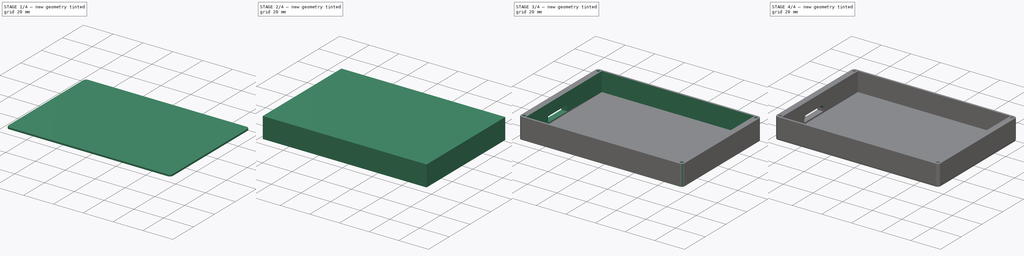
[diagram: build sequence overview — one tinted view per stage of 4, left to right]
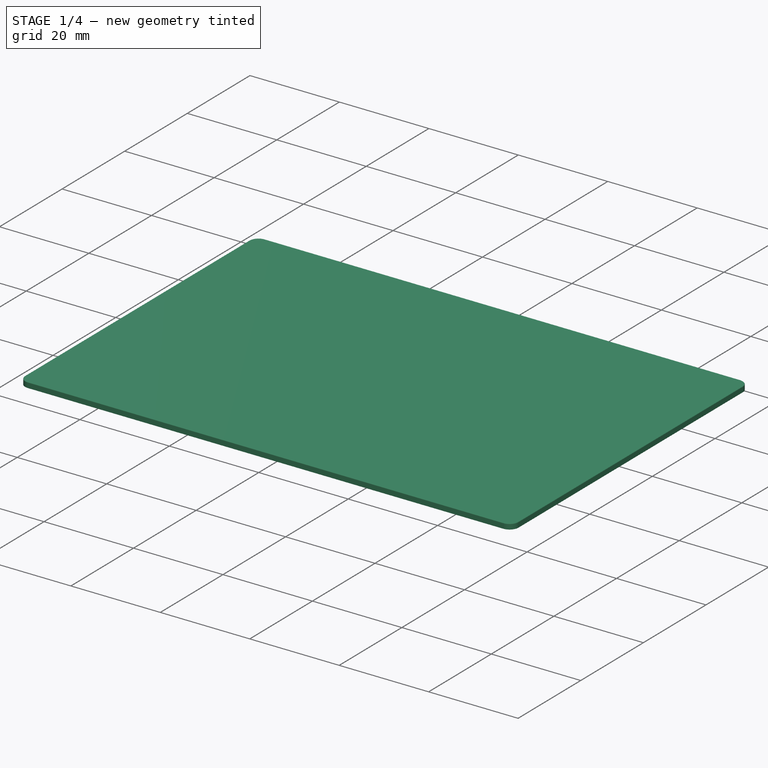
[diagram: stage 1 of 4 — iso view after this stage's code; geometry added in this stage tinted green]
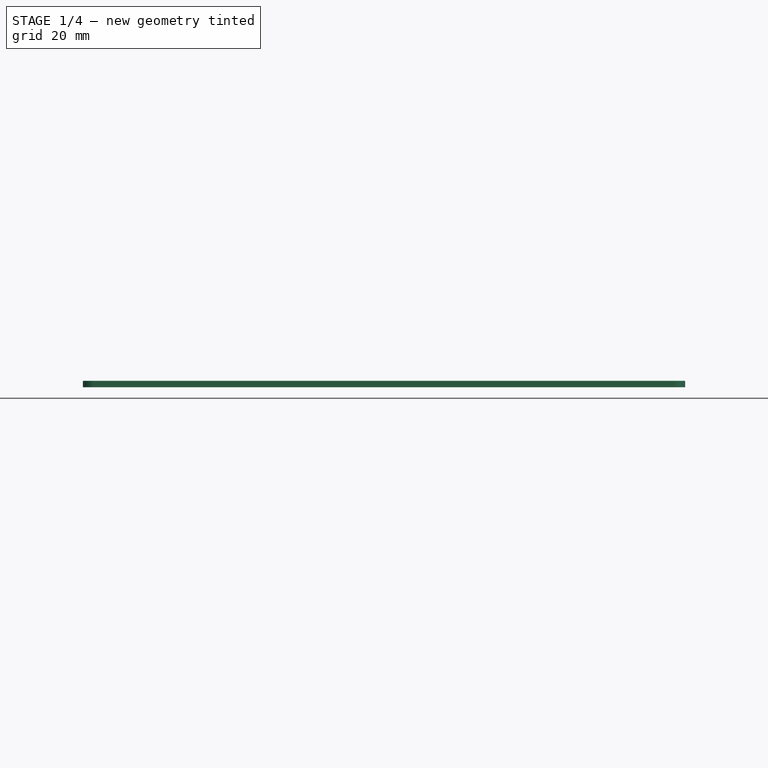
[diagram: stage 1 of 4 — front view after this stage's code; geometry added in this stage tinted green]
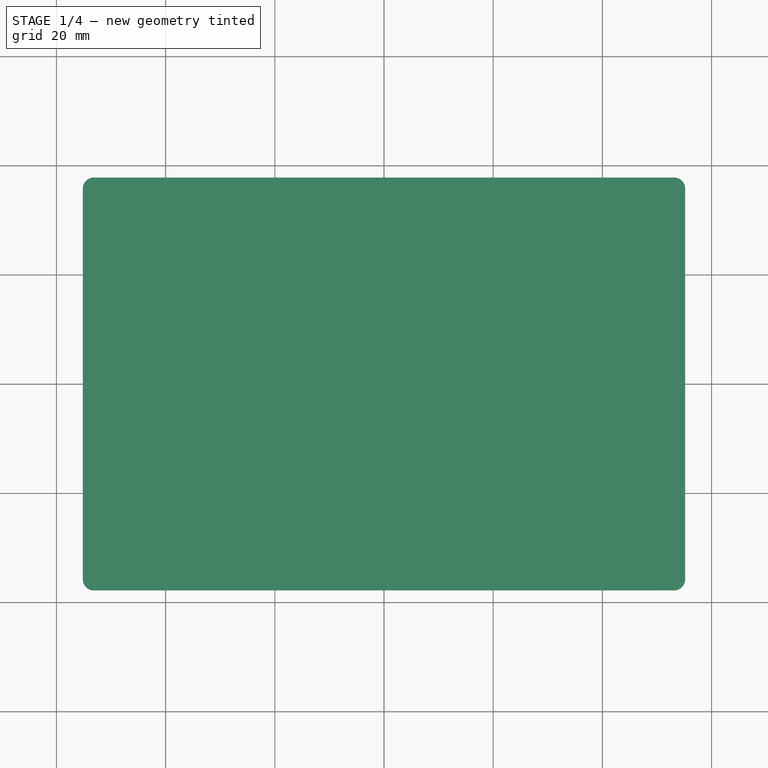
[diagram: stage 1 of 4 — top view after this stage's code; geometry added in this stage tinted green]
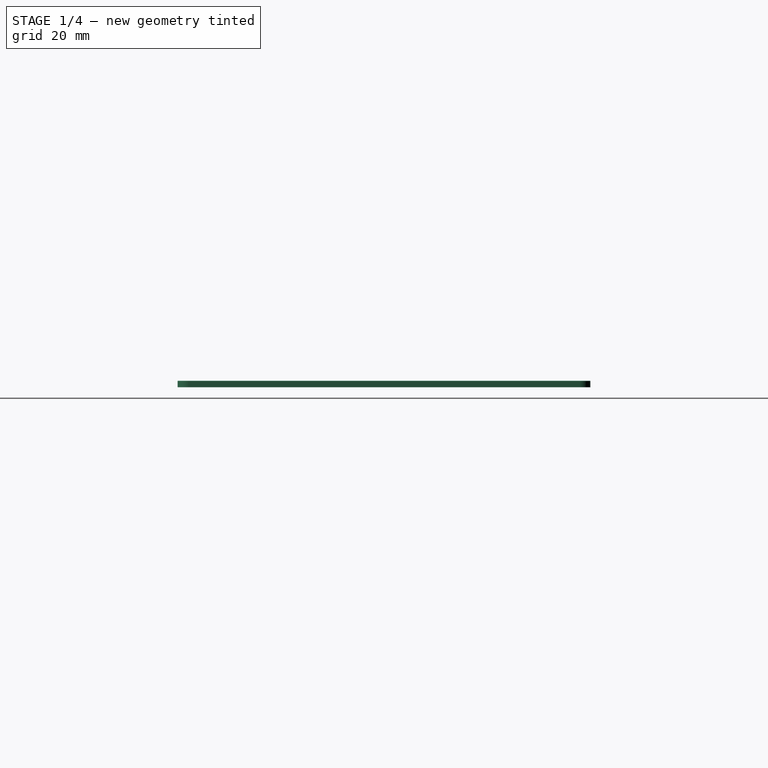
[diagram: stage 1 of 4 — right view after this stage's code; geometry added in this stage tinted green]
FCSTD DOCUMENT  (FreeCAD 0.21R33771 (Git))
Label: 三星移动硬盘盒
License: All rights reserved
LicenseURL: http://en.wikipedia.org/wiki/All_rights_reserved
objects: Sketcher::SketchObject×7, PartDesign::Fillet×5, PartDesign::Pocket×4, PartDesign::Pad×3, PartDesign::Body×2, App::Part×2, PartDesign::Chamfer×1
note: 35 computed .brp shape members not serialized (recipe doc carries the construction recipe); baked Part::Feature solids carry a one-line shape summary decoded from their .brp

FEATURE [PartDesign::Body] Body  label="实体"
  Group = -> [Sketch,Pad,Sketch002,Pocket,Sketch003,Pocket001,Sketch004,Pocket002,Fillet,Fillet001,Fillet003,Sketch005,Pad001]
  Origin = -> Origin
  Tip = -> Pad001
FEATURE [App::Part] Part  label="底部"
  Group = -> [Body]
  Origin = -> Origin001
FEATURE [Sketcher::SketchObject] Sketch006
  FullyConstrained = true
  MapMode = 5
  Support = -> [XY_Plane004]
  sketch-geometry (8):
    g0: LineSegment StartX=-51.25 StartY=36.5 StartZ=0 EndX=51.25 EndY=36.5 EndZ=0
    g1: LineSegment StartX=51.25 StartY=36.5 StartZ=0 EndX=51.25 EndY=-36.5 EndZ=0
    g2: LineSegment StartX=51.25 StartY=-36.5 StartZ=0 EndX=-51.25 EndY=-36.5 EndZ=0
    g3: LineSegment StartX=-51.25 StartY=-36.5 StartZ=0 EndX=-51.25 EndY=36.5 EndZ=0
    g4: LineSegment StartX=-55.15 StartY=37.8 StartZ=0 EndX=55.15 EndY=37.8 EndZ=0
    g5: LineSegment StartX=55.15 StartY=37.8 StartZ=0 EndX=55.15 EndY=-37.8 EndZ=0
    g6: LineSegment StartX=55.15 StartY=-37.8 StartZ=0 EndX=-55.15 EndY=-37.8 EndZ=0
    g7: LineSegment StartX=-55.15 StartY=-37.8 StartZ=0 EndX=-55.15 EndY=37.8 EndZ=0
  constraints (23):
    c: Coincident(g0,g1)
    c: Coincident(g1,g2)
    c: Coincident(g2,g3)
    c: Coincident(g3,g0)
    c: Horizontal(g0)
    c: Horizontal(g2)
    c: Vertical(g1)
    c: Vertical(g3)
    c: DistanceX(g2,g2) = 102.5
    c: DistanceY(g1,g1) = 73
    c: Symmetric(g2,g0,g-1)
    c: Coincident(g4,g5)
    c: Coincident(g5,g6)
    c: Coincident(g6,g7)
    c: Coincident(g7,g4)
    c: Horizontal(g4)
    c: Horizontal(g6)
    c: Vertical(g5)
    c: Vertical(g7)
    c: Distance(g1,g5) = 3.9
    c: Distance(g2,g7) = 3.9
    c: Distance(g0,g4) = 1.3
    c: Distance(g2,g6) = 1.3
FEATURE [PartDesign::Pad] Pad002
  Direction = (0,0,1)
  Length = 1.2
  Length2 = 10
  Profile = -> Sketch006
  ReferenceAxis = -> Sketch006 [N_Axis]
  Type = 0
FEATURE [PartDesign::Fillet] Fillet004
  Base = -> Pad002 [Edge8,Edge1,Edge2,Edge5]
  BaseFeature = -> Pad002
  Radius = 2
  SupportTransform = false
  UseAllEdges = false
FEATURE [PartDesign::Fillet] Fillet005
  Base = -> Fillet004 [Edge20]
  BaseFeature = -> Fillet004
  Radius = 0.1
  SupportTransform = false
  UseAllEdges = false
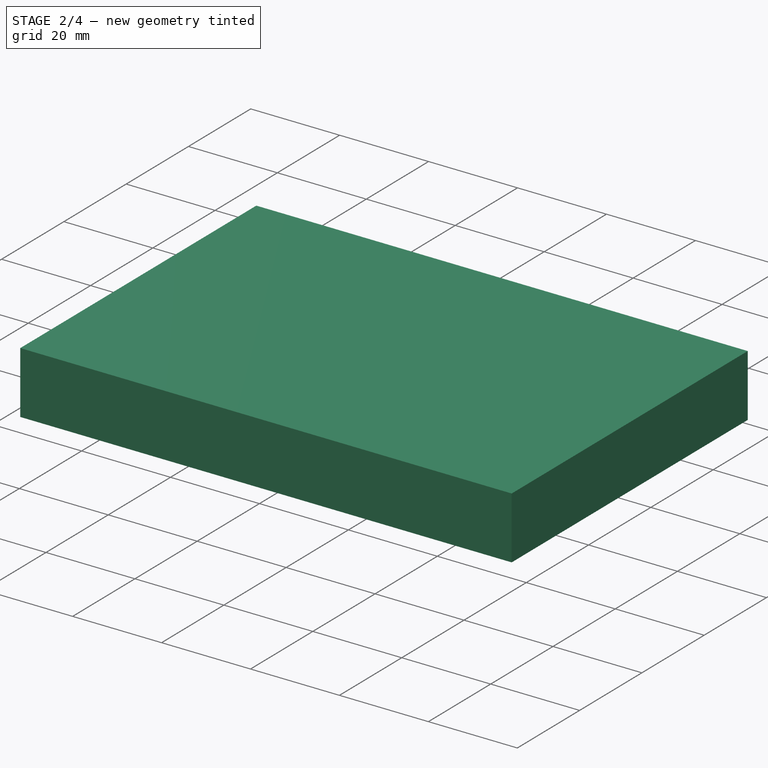
[diagram: stage 2 of 4 — iso view after this stage's code; geometry added in this stage tinted green]
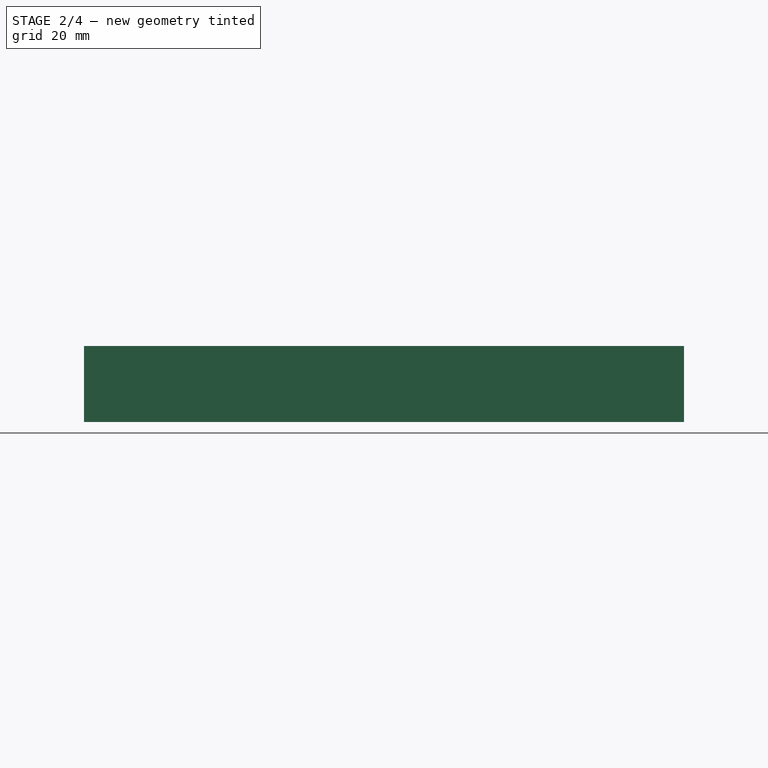
[diagram: stage 2 of 4 — front view after this stage's code; geometry added in this stage tinted green]
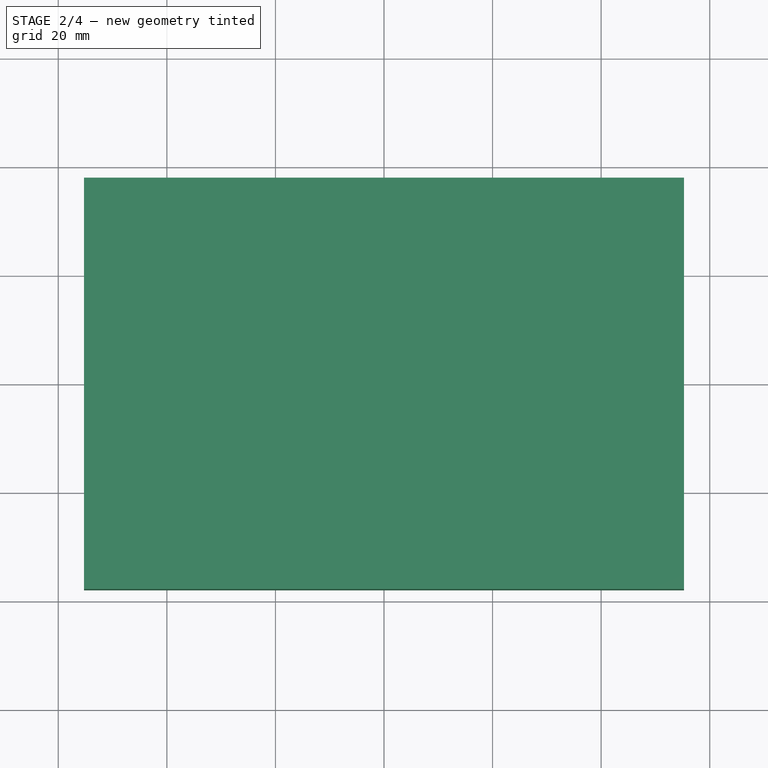
[diagram: stage 2 of 4 — top view after this stage's code; geometry added in this stage tinted green]
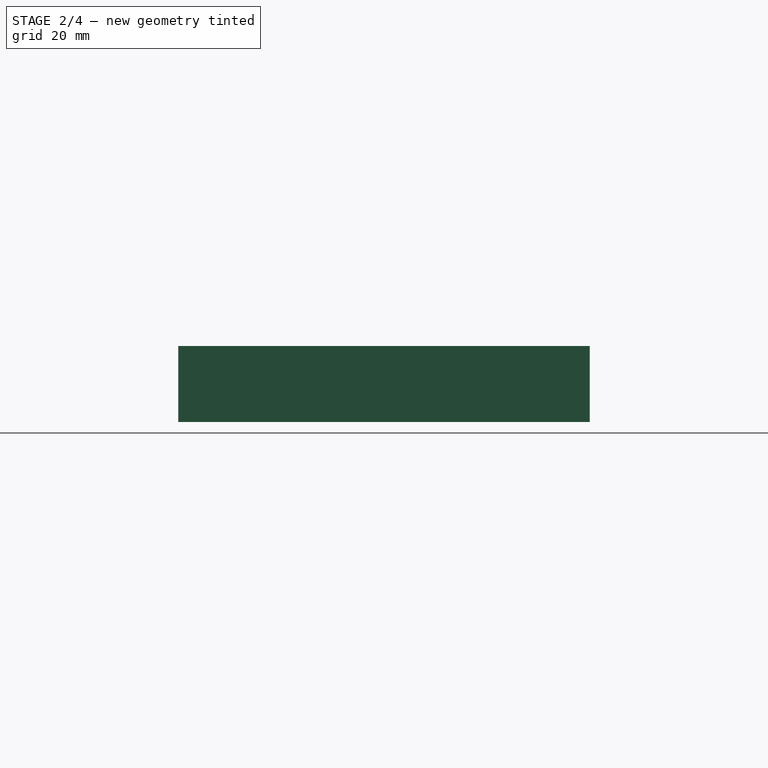
[diagram: stage 2 of 4 — right view after this stage's code; geometry added in this stage tinted green]
FEATURE [Sketcher::SketchObject] Sketch
  FullyConstrained = true
  MapMode = 5
  Support = -> [XY_Plane]
  sketch-geometry (8):
    g0: LineSegment StartX=-51.25 StartY=36.5 StartZ=0 EndX=51.25 EndY=36.5 EndZ=0
    g1: LineSegment StartX=51.25 StartY=36.5 StartZ=0 EndX=51.25 EndY=-36.5 EndZ=0
    g2: LineSegment StartX=51.25 StartY=-36.5 StartZ=0 EndX=-51.25 EndY=-36.5 EndZ=0
    g3: LineSegment StartX=-51.25 StartY=-36.5 StartZ=0 EndX=-51.25 EndY=36.5 EndZ=0
    g4: LineSegment StartX=-55.25 StartY=37.9 StartZ=0 EndX=55.25 EndY=37.9 EndZ=0
    g5: LineSegment StartX=55.25 StartY=37.9 StartZ=0 EndX=55.25 EndY=-37.9 EndZ=0
    g6: LineSegment StartX=55.25 StartY=-37.9 StartZ=0 EndX=-55.25 EndY=-37.9 EndZ=0
    g7: LineSegment StartX=-55.25 StartY=-37.9 StartZ=0 EndX=-55.25 EndY=37.9 EndZ=0
  constraints (23):
    c: Coincident(g0,g1)
    c: Coincident(g1,g2)
    c: Coincident(g2,g3)
    c: Coincident(g3,g0)
    c: Horizontal(g0)
    c: Horizontal(g2)
    c: Vertical(g1)
    c: Vertical(g3)
    c: DistanceX(g2,g2) = 102.5
    c: DistanceY(g1,g1) = 73
    c: Symmetric(g2,g0,g-1)
    c: Coincident(g4,g5)
    c: Coincident(g5,g6)
    c: Coincident(g6,g7)
    c: Coincident(g7,g4)
    c: Horizontal(g4)
    c: Horizontal(g6)
    c: Vertical(g5)
    c: Vertical(g7)
    c: Distance(g1,g5) = 4
    c: Distance(g2,g7) = 4
    c: Distance(g0,g4) = 1.4
    c: Distance(g2,g6) = 1.4
FEATURE [PartDesign::Pad] Pad
  Direction = (0,0,1)
  Length = 14
  Length2 = 10
  Profile = -> Sketch
  ReferenceAxis = -> Sketch [N_Axis]
  Type = 0
FEATURE [Sketcher::SketchObject] Sketch007
  ExternalGeometry = -> [Fillet005]
  FullyConstrained = true
  MapMode = 5
  Placement = pos=(0,0,1.2) rot=(0,0,1;0rad)
  Support = -> [Fillet005]
  sketch-geometry (4):
    g0: Circle CenterX=-53.15 CenterY=-35.6 CenterZ=0 NormalX=0 NormalY=0 NormalZ=1 AngleXU=0 Radius=1
    g1: Circle CenterX=53.15 CenterY=35.6 CenterZ=0 NormalX=0 NormalY=0 NormalZ=1 AngleXU=0 Radius=1
    g2: Circle CenterX=53.15 CenterY=-35.6 CenterZ=0 NormalX=0 NormalY=0 NormalZ=1 AngleXU=0 Radius=1
    g3: Circle CenterX=-53.15 CenterY=35.6 CenterZ=0 NormalX=0 NormalY=0 NormalZ=1 AngleXU=0 Radius=1
  constraints (12):
    c: Diameter(g0) = 2
    c: Diameter(g1) = 2
    c: Equal(g1,g2)
    c: Diameter(g3) = 2
    c: Distance(g0,g-3) = 2
    c: Distance(g3,g-3) = 2
    c: Distance(g1,g-8) = 2
    c: Distance(g2,g-8) = 2
    c: Distance(g0,g-6) = 2.2
    c: Distance(g3,g-9) = 2.2
    c: Distance(g1,g-9) = 2.2
    c: Distance(g2,g-6) = 2.2
FEATURE [PartDesign::Pocket] Pocket003
  BaseFeature = -> Fillet005
  Direction = (0,0,-1)
  Length = 5
  Length2 = 5
  Profile = -> Sketch007
  ReferenceAxis = -> Sketch007 [N_Axis]
  Type = 0
FEATURE [PartDesign::Chamfer] Chamfer
  Angle = 45
  Base = -> Pocket003 [Edge36,Edge35,Edge33,Edge34]
  BaseFeature = -> Pocket003
  ChamferType = 0
  FlipDirection = false
  Size = 0.8
  Size2 = 1
  SupportTransform = false
  UseAllEdges = false
FEATURE [PartDesign::Body] Body001  label="实体001"
  Group = -> [Sketch006,Pad002,Fillet004,Fillet005,Sketch007,Pocket003,Chamfer]
  Origin = -> Origin003
  Tip = -> Chamfer
FEATURE [App::Part] Part001  label="顶部"
  Group = -> [Body001]
  Origin = -> Origin002
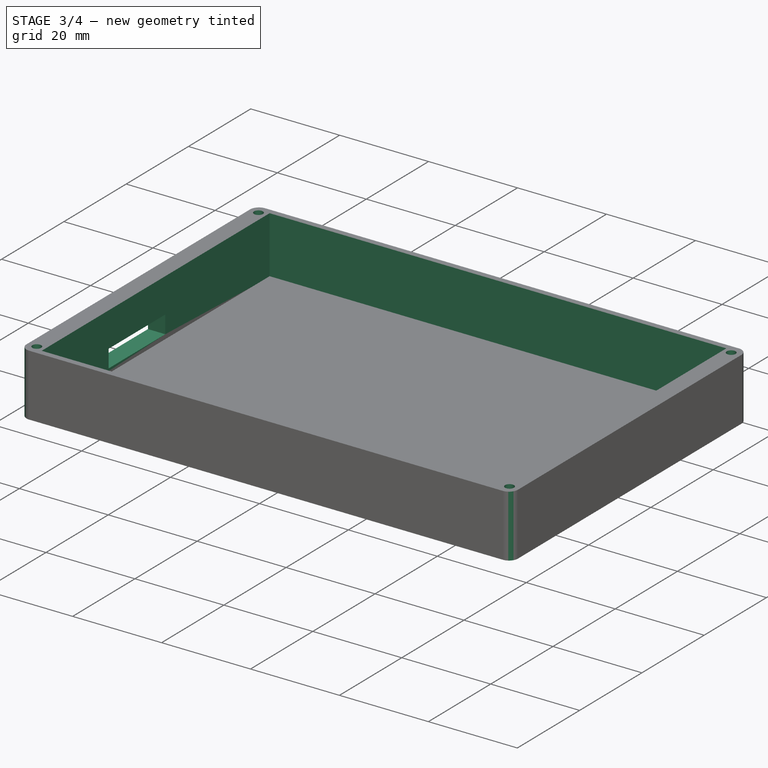
[diagram: stage 3 of 4 — iso view after this stage's code; geometry added in this stage tinted green]
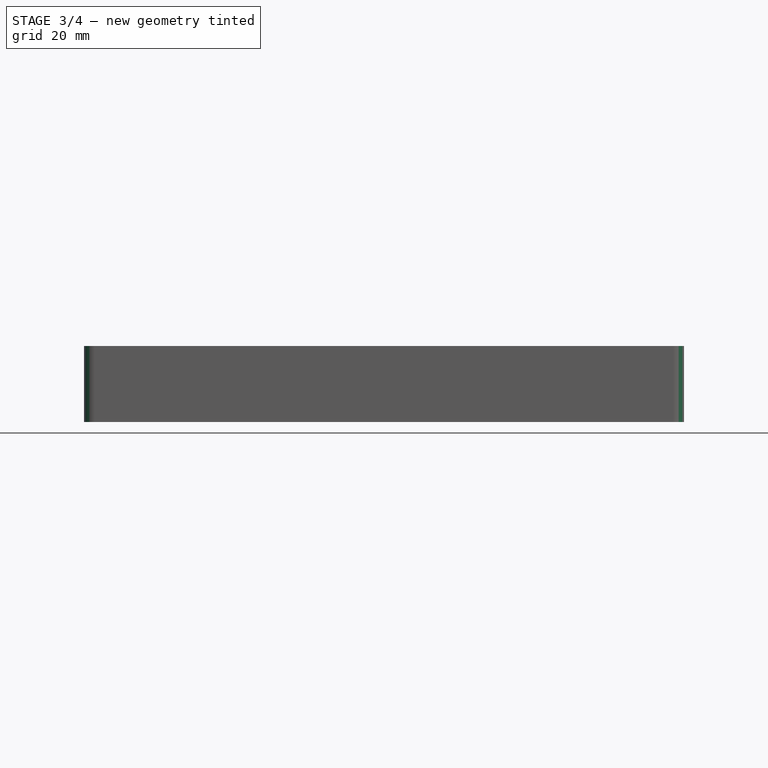
[diagram: stage 3 of 4 — front view after this stage's code; geometry added in this stage tinted green]
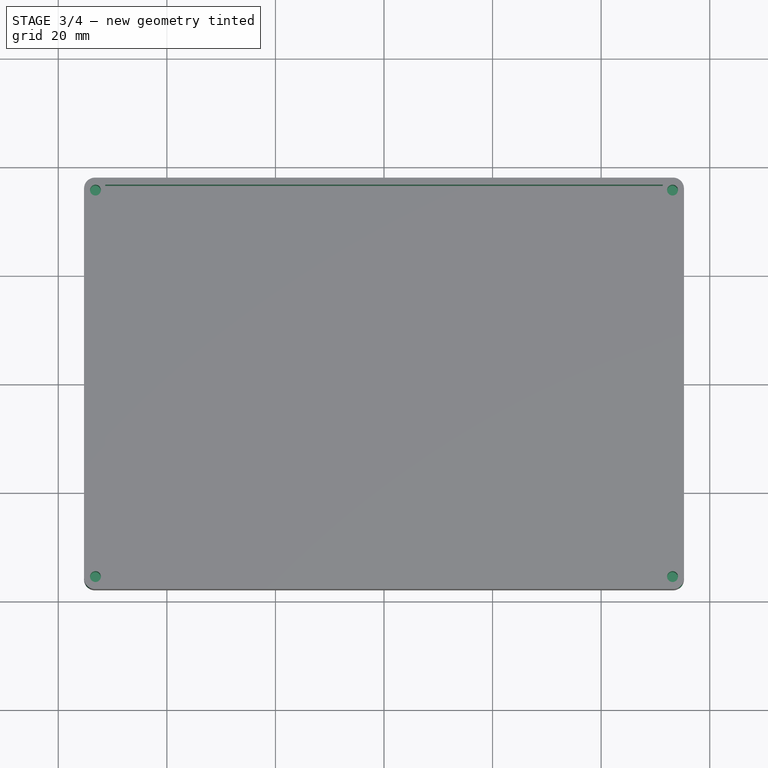
[diagram: stage 3 of 4 — top view after this stage's code; geometry added in this stage tinted green]
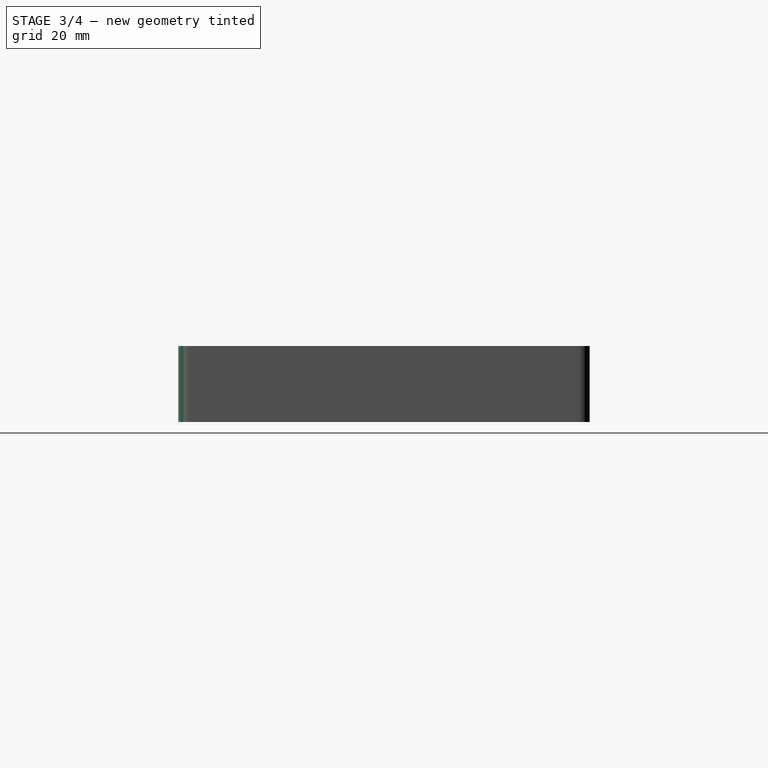
[diagram: stage 3 of 4 — right view after this stage's code; geometry added in this stage tinted green]
FEATURE [Sketcher::SketchObject] Sketch002
  FullyConstrained = true
  MapMode = 5
  Placement = pos=(0,0,14) rot=(0,0,1;0rad)
  Support = -> [Pad]
  sketch-geometry (4):
    g0: LineSegment StartX=-51.35 StartY=36.6 StartZ=0 EndX=51.35 EndY=36.6 EndZ=0
    g1: LineSegment StartX=51.35 StartY=36.6 StartZ=0 EndX=51.35 EndY=-36.6 EndZ=0
    g2: LineSegment StartX=51.35 StartY=-36.6 StartZ=0 EndX=-51.35 EndY=-36.6 EndZ=0
    g3: LineSegment StartX=-51.35 StartY=-36.6 StartZ=0 EndX=-51.35 EndY=36.6 EndZ=0
  constraints (11):
    c: Coincident(g0,g1)
    c: Coincident(g1,g2)
    c: Coincident(g2,g3)
    c: Coincident(g3,g0)
    c: Horizontal(g0)
    c: Horizontal(g2)
    c: Vertical(g1)
    c: Vertical(g3)
    c: DistanceX(g0,g0) = 102.7
    c: DistanceY(g1,g1) = 73.2
    c: Symmetric(g2,g0,g-1)
FEATURE [PartDesign::Pocket] Pocket
  BaseFeature = -> Pad
  Direction = (0,0,-1)
  Length = 13
  Length2 = 5
  Profile = -> Sketch002
  ReferenceAxis = -> Sketch002 [N_Axis]
  Type = 0
FEATURE [Sketcher::SketchObject] Sketch003
  ExternalGeometry = -> [Pocket]
  FullyConstrained = true
  MapMode = 5
  Placement = pos=(-51.35,0,0) rot=(0.57735,0.57735,0.57735;2.0944rad)
  Support = -> [Pocket]
  sketch-geometry (4):
    g0: LineSegment StartX=-15.1 StartY=6.2 StartZ=0 EndX=3.1 EndY=6.2 EndZ=0
    g1: LineSegment StartX=3.1 StartY=6.2 StartZ=0 EndX=3.1 EndY=2.2 EndZ=0
    g2: LineSegment StartX=3.1 StartY=2.2 StartZ=0 EndX=-15.1 EndY=2.2 EndZ=0
    g3: LineSegment StartX=-15.1 StartY=2.2 StartZ=0 EndX=-15.1 EndY=6.2 EndZ=0
  constraints (12):
    c: Coincident(g0,g1)
    c: Coincident(g1,g2)
    c: Coincident(g2,g3)
    c: Coincident(g3,g0)
    c: Horizontal(g0)
    c: Horizontal(g2)
    c: Vertical(g1)
    c: Vertical(g3)
    c: Distance(g2,g-3) = 21.5
    c: Distance(g1,g-6) = 33.5
    c: Distance(g1,g-4) = 1.2
    c: DistanceY(g3,g3) = 4
FEATURE [PartDesign::Pocket] Pocket001
  BaseFeature = -> Pocket
  Direction = (-1,0,0)
  Length = 5
  Length2 = 5
  Profile = -> Sketch003
  ReferenceAxis = -> Sketch003 [N_Axis]
  Type = 1
FEATURE [Sketcher::SketchObject] Sketch004
  ExternalGeometry = -> [Pocket001]
  FullyConstrained = true
  MapMode = 5
  Placement = pos=(0,0,14) rot=(0,0,1;0rad)
  Support = -> [Pocket001]
  sketch-geometry (4):
    g0: Circle CenterX=-53.15 CenterY=-35.6 CenterZ=0 NormalX=0 NormalY=0 NormalZ=1 AngleXU=0 Radius=1
    g1: Circle CenterX=53.15 CenterY=35.6 CenterZ=0 NormalX=0 NormalY=0 NormalZ=1 AngleXU=0 Radius=1
    g2: Circle CenterX=53.15 CenterY=-35.6 CenterZ=0 NormalX=0 NormalY=0 NormalZ=1 AngleXU=0 Radius=1
    g3: Circle CenterX=-53.15 CenterY=35.6 CenterZ=0 NormalX=0 NormalY=0 NormalZ=1 AngleXU=0 Radius=1
  constraints (12):
    c: Diameter(g0) = 2
    c: Diameter(g1) = 2
    c: Diameter(g2) = 2
    c: Diameter(g3) = 2
    c: Distance(g0,g-4) = 1.8
    c: Distance(g0,g-7) = 2.3
    c: Distance(g3,g-9) = 2.3
    c: Distance(g2,g-6) = 1.8
    c: Distance(g2,g-7) = 2.3
    c: Distance(g1,g-6) = 1.8
    c: Distance(g1,g-9) = 2.3
    c: Distance(g3,g-4) = 1.8
FEATURE [PartDesign::Pocket] Pocket002
  BaseFeature = -> Pocket001
  Direction = (0,0,-1)
  Length = 10
  Length2 = 5
  Profile = -> Sketch004
  ReferenceAxis = -> Sketch004 [N_Axis]
  Type = 0
FEATURE [PartDesign::Fillet] Fillet
  Base = -> Pocket002 [Edge1,Edge5,Edge2,Edge12]
  BaseFeature = -> Pocket002
  Radius = 2
  SupportTransform = false
  UseAllEdges = false
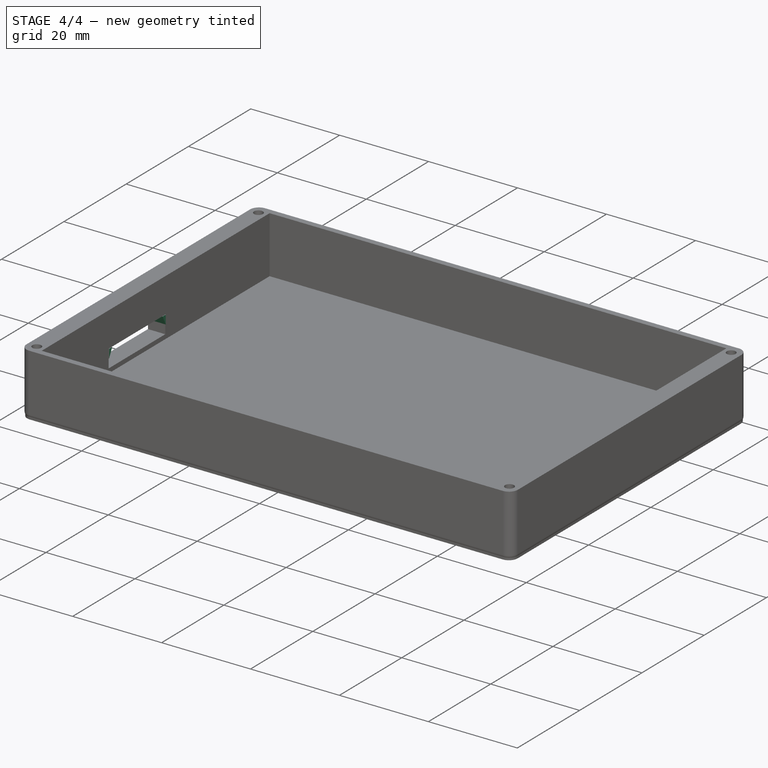
[diagram: stage 4 of 4 — iso view after this stage's code; geometry added in this stage tinted green]
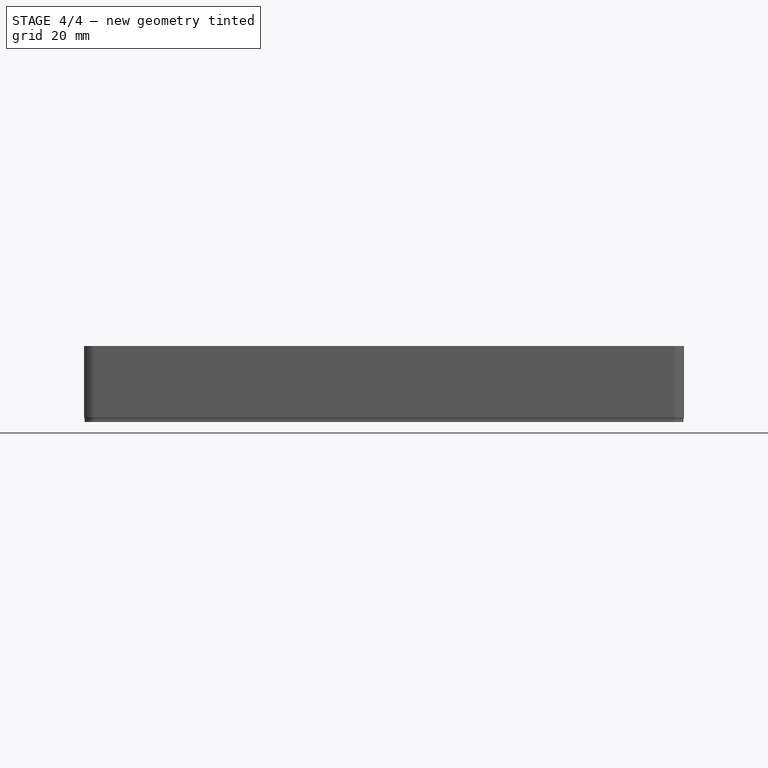
[diagram: stage 4 of 4 — front view after this stage's code; geometry added in this stage tinted green]
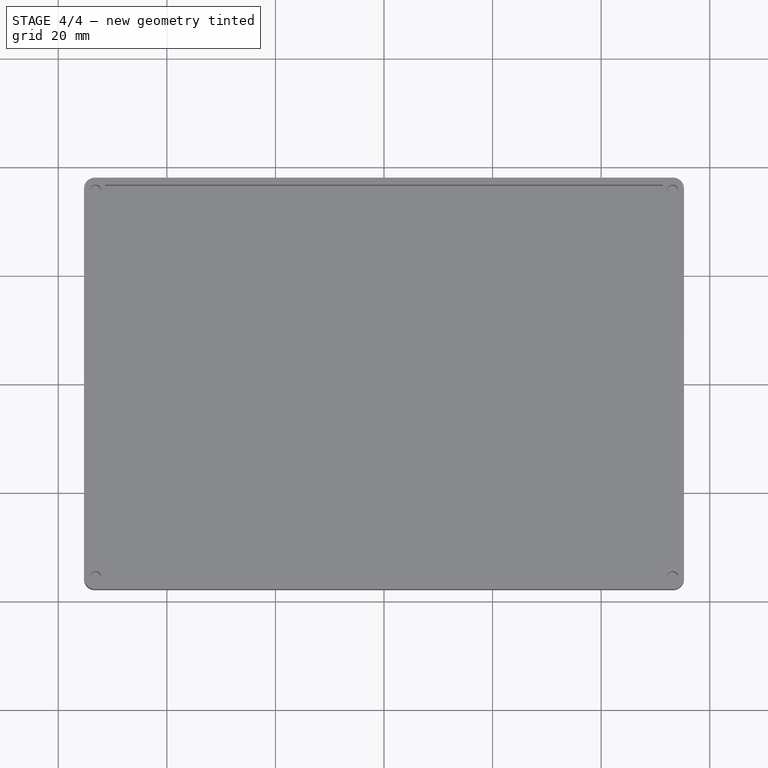
[diagram: stage 4 of 4 — top view after this stage's code; geometry added in this stage tinted green]
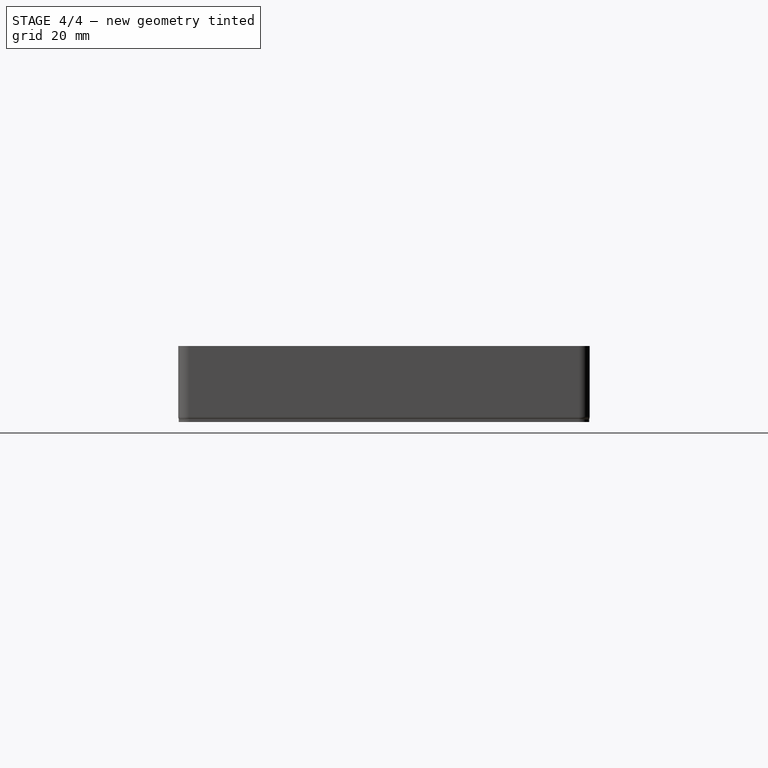
[diagram: stage 4 of 4 — right view after this stage's code; geometry added in this stage tinted green]
FEATURE [PartDesign::Fillet] Fillet001
  Base = -> Fillet [Edge7]
  BaseFeature = -> Fillet
  Radius = 1
  SupportTransform = false
  UseAllEdges = false
FEATURE [PartDesign::Fillet] Fillet003
  Base = -> Fillet001
  BaseFeature = -> Fillet001
  Radius = 1
  SupportTransform = false
  UseAllEdges = false
FEATURE [Sketcher::SketchObject] Sketch005
  ExternalGeometry = -> [Fillet003]
  FullyConstrained = true
  MapMode = 5
  Placement = pos=(-55.25,0,0) rot=(0.57735,-0.57735,-0.57735;2.0944rad)
  Support = -> [Fillet003]
  sketch-geometry (6):
    g0: LineSegment StartX=-3.1 StartY=6.2 StartZ=0 EndX=-3.1 EndY=4.2 EndZ=0
    g1: LineSegment StartX=-3.1 StartY=4.2 StartZ=0 EndX=-2.1 EndY=6.2 EndZ=0
    g2: LineSegment StartX=-2.1 StartY=6.2 StartZ=0 EndX=-3.1 EndY=6.2 EndZ=0
    g3: LineSegment StartX=14.1 StartY=6.2 StartZ=0 EndX=15.1 EndY=6.2 EndZ=0
    g4: LineSegment StartX=15.1 StartY=6.2 StartZ=0 EndX=15.1 EndY=4.2 EndZ=0
    g5: LineSegment StartX=15.1 StartY=4.2 StartZ=0 EndX=14.1 EndY=6.2 EndZ=0
  constraints (16):
    c: Vertical(g0)
    c: Coincident(g0,g1)
    c: Coincident(g1,g2)
    c: Coincident(g2,g0)
    c: Horizontal(g3)
    c: Coincident(g3,g4)
    c: Vertical(g4)
    c: Coincident(g4,g5)
    c: Coincident(g5,g3)
    c: DistanceX(g3,g3) = 1
    c: DistanceY(g4,g4) = 2
    c: Horizontal(g2)
    c: DistanceX(g2,g2) = 1
    c: DistanceY(g0,g0) = 2
    c: Coincident(g0,g-5)
    c: Coincident(g3,g-6)
FEATURE [PartDesign::Pad] Pad001
  BaseFeature = -> Fillet003
  Direction = (-1,0,0)
  Length = 4
  Length2 = 10
  Offset = 3
  Profile = -> Sketch005
  ReferenceAxis = -> Sketch005 [N_Axis]
  Reversed = true
  Type = 0
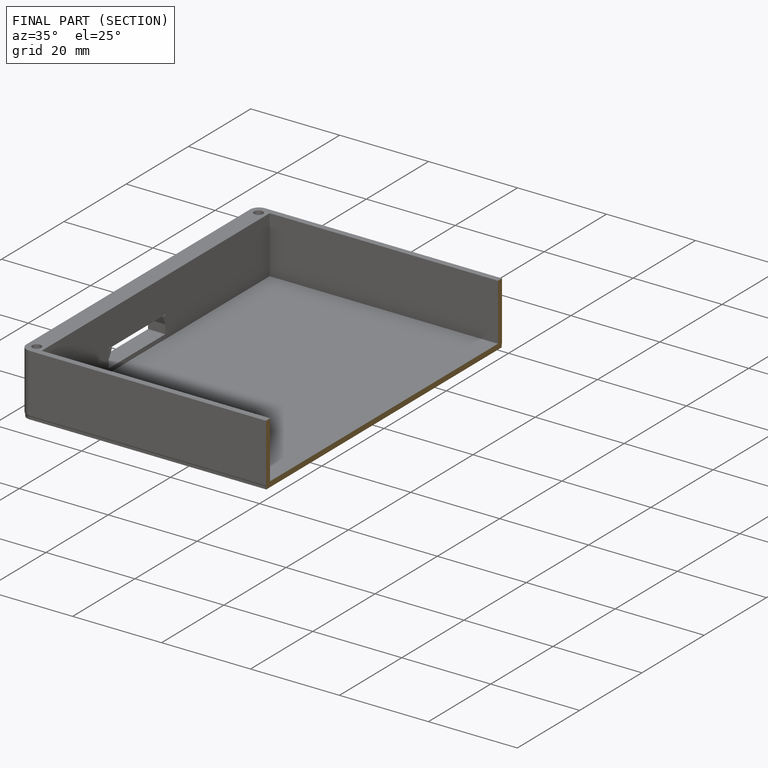
[diagram: finished part — half-section view (interior)]
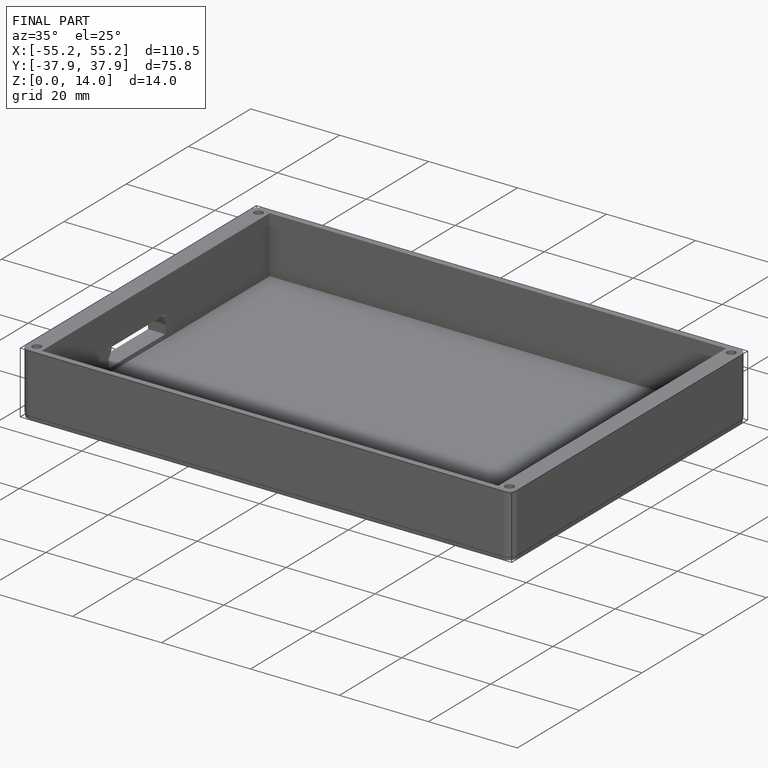
[diagram: finished part — iso view with bounding-box wireframe]
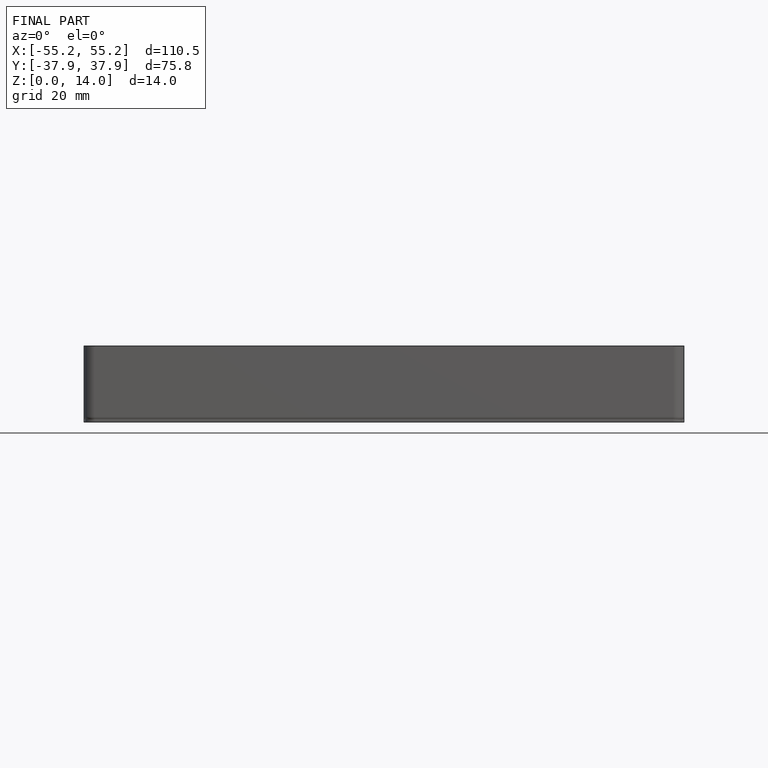
[diagram: finished part — front view with bounding-box wireframe]
